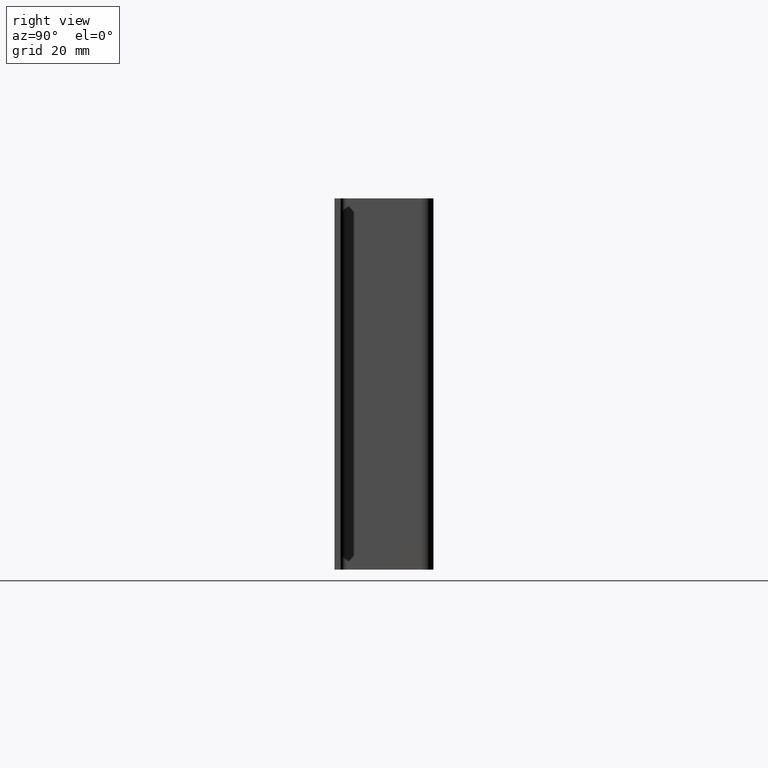
[diagram: clean part render]
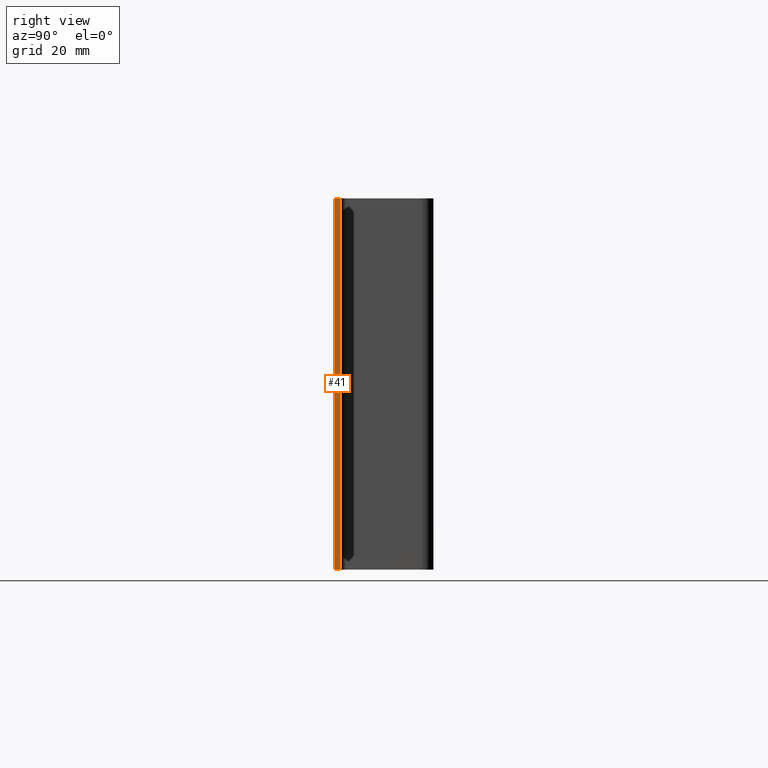
[diagram: same view with one face highlighted and labeled with its STEP entity id]
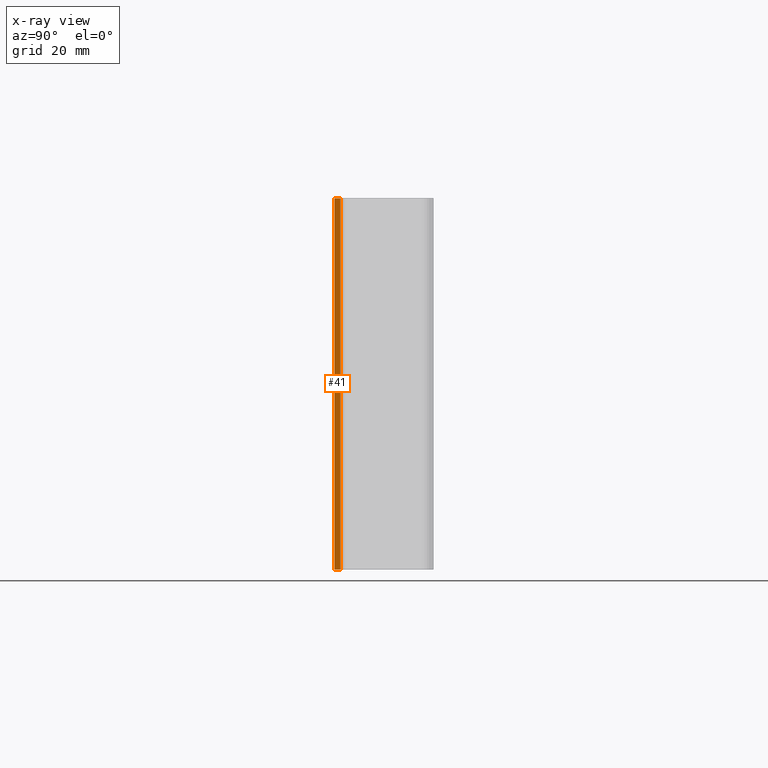
[diagram: x-ray of the same camera — body ghosted, the highlighted face saturated]
A machine part, right view. The second image highlights one B-rep face of the part: STEP entity #41.
The next image is the same camera in x-ray: the body ghosted, the highlighted face saturated — about 0% of this face is hidden behind the body in this view.
In plain terms, the highlighted planar face has unit normal (-1, 0, 0).
Its self-contained STEP definition (entity closure, byte-faithful):
#23 = EDGE_CURVE ( 'NONE', #197, #208, #318, .T. ) ;
#32 = EDGE_CURVE ( 'NONE', #205, #207, #331, .T. ) ;
#40 = EDGE_CURVE ( 'NONE', #207, #208, #348, .T. ) ;
#41 = ADVANCED_FACE ( 'NONE', ( #382 ), #370, .F. ) ;
#48 = EDGE_CURVE ( 'NONE', #205, #197, #386, .T. ) ;
#84 = VECTOR ( 'NONE', #344, 1000.000000000000000 ) ;
#88 = AXIS2_PLACEMENT_3D ( 'NONE', #362, #346, #363 ) ;
#90 = VECTOR ( 'NONE', #347, 1000.000000000000000 ) ;
#95 = VECTOR ( 'NONE', #314, 1000.000000000000000 ) ;
#115 = VECTOR ( 'NONE', #337, 1000.000000000000000 ) ;
#147 = ORIENTED_EDGE ( 'NONE', *, *, #23, .F. ) ;
#165 = ORIENTED_EDGE ( 'NONE', *, *, #48, .F. ) ;
#176 = ORIENTED_EDGE ( 'NONE', *, *, #40, .T. ) ;
#179 = ORIENTED_EDGE ( 'NONE', *, *, #32, .T. ) ;
#197 = VERTEX_POINT ( 'NONE', #405 ) ;
#205 = VERTEX_POINT ( 'NONE', #457 ) ;
#207 = VERTEX_POINT ( 'NONE', #461 ) ;
#208 = VERTEX_POINT ( 'NONE', #445 ) ;
#290 = EDGE_LOOP ( 'NONE', ( #176, #147, #165, #179 ) ) ;
#298 = CARTESIAN_POINT ( 'NONE',  ( 201.0999999999999900, -30.10000000000000100, 120.0000000000000000 ) ) ;
#314 = DIRECTION ( 'NONE',  ( -0.0000000000000000000, -0.0000000000000000000, -1.000000000000000000 ) ) ;
#318 = LINE ( 'NONE', #324, #115 ) ;
#324 = CARTESIAN_POINT ( 'NONE',  ( 201.0999999999999900, -28.20000000000000300, 120.0000000000000000 ) ) ;
#331 = LINE ( 'NONE', #298, #95 ) ;
#337 = DIRECTION ( 'NONE',  ( -0.0000000000000000000, -0.0000000000000000000, -1.000000000000000000 ) ) ;
#344 = DIRECTION ( 'NONE',  ( -0.0000000000000000000, 1.000000000000000000, -0.0000000000000000000 ) ) ;
#345 = CARTESIAN_POINT ( 'NONE',  ( 201.0999999999999900, -28.20000000000000300, 0.0000000000000000000 ) ) ;
#346 = DIRECTION ( 'NONE',  ( -1.000000000000000000, 0.0000000000000000000, 0.0000000000000000000 ) ) ;
#347 = DIRECTION ( 'NONE',  ( -0.0000000000000000000, 1.000000000000000000, -0.0000000000000000000 ) ) ;
#348 = LINE ( 'NONE', #345, #84 ) ;
#357 = CARTESIAN_POINT ( 'NONE',  ( 201.0999999999999900, -28.20000000000000300, 120.0000000000000000 ) ) ;
#362 = CARTESIAN_POINT ( 'NONE',  ( 201.0999999999999900, -28.20000000000000300, 120.0000000000000000 ) ) ;
#363 = DIRECTION ( 'NONE',  ( 0.0000000000000000000, 0.0000000000000000000, 1.000000000000000000 ) ) ;
#370 = PLANE ( 'NONE',  #88 ) ;
#382 = FACE_OUTER_BOUND ( 'NONE', #290, .T. ) ;
#386 = LINE ( 'NONE', #357, #90 ) ;
#405 = CARTESIAN_POINT ( 'NONE',  ( 201.0999999999999900, -28.20000000000000300, 120.0000000000000000 ) ) ;
#445 = CARTESIAN_POINT ( 'NONE',  ( 201.0999999999999900, -28.20000000000000300, 0.0000000000000000000 ) ) ;
#457 = CARTESIAN_POINT ( 'NONE',  ( 201.0999999999999900, -30.10000000000000100, 120.0000000000000000 ) ) ;
#461 = CARTESIAN_POINT ( 'NONE',  ( 201.0999999999999900, -30.10000000000000100, 0.0000000000000000000 ) ) ;